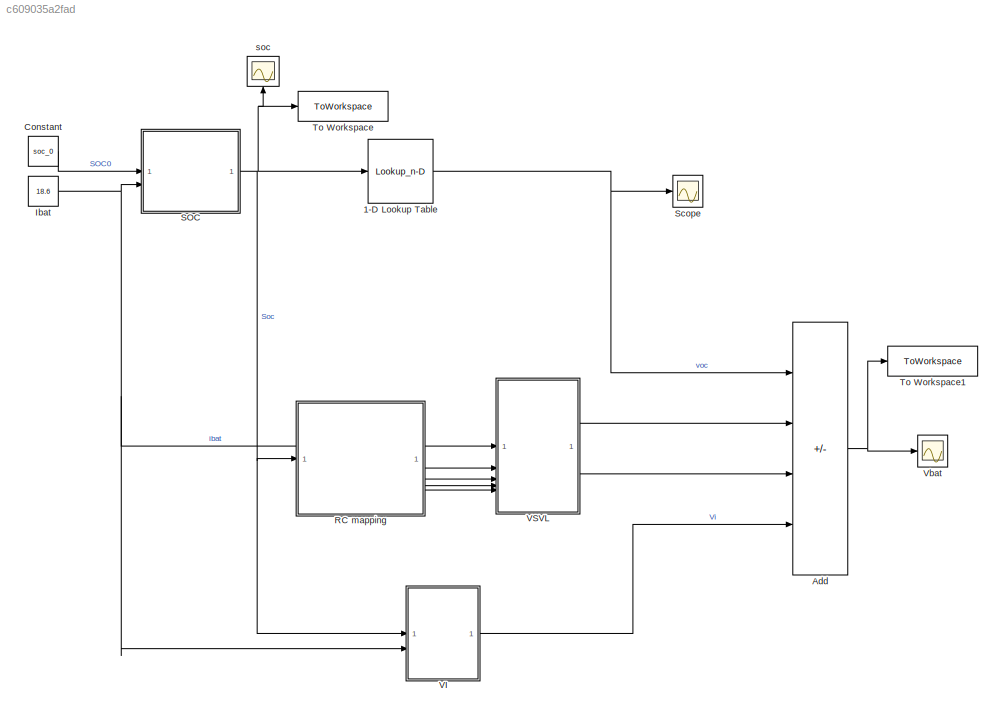
MODEL slx_c609035a2fad
KIND model
CONFIG AbsTol = auto
CONFIG EnableMultiTasking = off
CONFIG FixedStep = 1e-3
CONFIG MaxStep = auto
CONFIG MinStep = auto
CONFIG RelTol = 1e-3
CONFIG SampleTimeConstraint = Unconstrained
CONFIG SolverName = ode1
CONFIG StartTime = 0.0
CONFIG StopTime = 3000
BLOCK [Lookup_n-D] 1-D Lookup Table
  BreakpointsForDimension1 = soc_voc
  InputPortMap = u0
  InternalRulePriority = Speed
  NumberOfTableDimensions = 1
  RndMeth = Simplest
  Table = voc
BLOCK [Sum] Add
  IconShape = rectangular
  Inputs = +---
BLOCK [Constant] Constant
  Value = soc_0
BLOCK [Constant] Ibat
  Value = 18.6
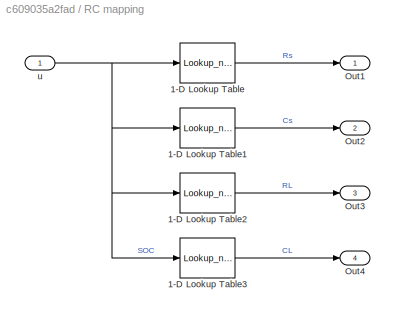
BLOCK [SubSystem] RC mapping
BLOCK [Lookup_n-D] RC mapping/1-D Lookup Table
  BreakpointsForDimension1 = soc_rs
  InputPortMap = u0
  InternalRulePriority = Speed
  NumberOfTableDimensions = 1
  RndMeth = Simplest
  Table = rs
BLOCK [Lookup_n-D] RC mapping/1-D Lookup Table1
  BreakpointsForDimension1 = soc_cs
  InputPortMap = u0
  InternalRulePriority = Speed
  NumberOfTableDimensions = 1
  RndMeth = Simplest
  Table = cs
BLOCK [Lookup_n-D] RC mapping/1-D Lookup Table2
  BreakpointsForDimension1 = soc_rl
  InputPortMap = u0
  InternalRulePriority = Speed
  NumberOfTableDimensions = 1
  RndMeth = Simplest
  Table = rl
BLOCK [Lookup_n-D] RC mapping/1-D Lookup Table3
  BreakpointsForDimension1 = soc_cl
  InputPortMap = u0
  InternalRulePriority = Speed
  NumberOfTableDimensions = 1
  RndMeth = Simplest
  Table = cl
BLOCK [Outport] RC mapping/Out1
  IconDisplay = Signal name
BLOCK [Outport] RC mapping/Out2
  IconDisplay = Signal name
  Port = 2
BLOCK [Outport] RC mapping/Out3
  IconDisplay = Signal name
  Port = 3
BLOCK [Outport] RC mapping/Out4
  IconDisplay = Signal name
  Port = 4
BLOCK [Inport] RC mapping/u
  IconDisplay = Signal name
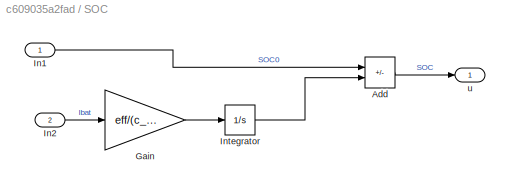
BLOCK [SubSystem] SOC
BLOCK [Sum] SOC/Add
  IconShape = rectangular
  Inputs = +-
BLOCK [Gain] SOC/Gain
  Gain = eff/(c_bat*36)
BLOCK [Inport] SOC/In1
  IconDisplay = Signal name
BLOCK [Inport] SOC/In2
  IconDisplay = Signal name
  Port = 2
BLOCK [Integrator] SOC/Integrator
BLOCK [Outport] SOC/u
  IconDisplay = Signal name
BLOCK [Scope] Scope
  Floating = off
  NumInputPorts = 1
  ScopeSpecificationString = Simulink.scopes.TimeScopeBlockCfg('CurrentConfiguration', extmgr.ConfigurationSet(extmgr.Configuration('Core','General UI',true),extmgr.Configuration('Core','Source UI',true),extmgr.Configuration('Sources','WiredSimulink',true,'DataLoggingVariableName','ScopeData2'),extmgr.Configuration('Visuals','Time Domain',true,'SerializedDisplays',{struct('MinYLimReal','3.28377','MaxYLimReal','3.46198','YLabe...<+1389ch>
BLOCK [ToWorkspace] To Workspace
  FixptAsFi = on
  MaxDataPoints = inf
  SampleTime = -1
  SaveFormat = Timeseries
  VariableName = socsim
BLOCK [ToWorkspace] To Workspace1
  FixptAsFi = on
  MaxDataPoints = inf
  SampleTime = -1
  SaveFormat = Timeseries
  VariableName = vbat
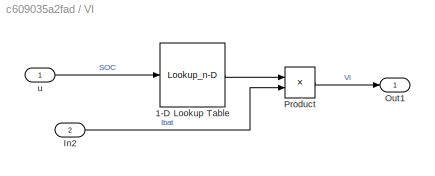
BLOCK [SubSystem] VI
BLOCK [Lookup_n-D] VI/1-D Lookup Table
  BreakpointsForDimension1 = soc_ri
  InputPortMap = u0
  InternalRulePriority = Speed
  NumberOfTableDimensions = 1
  RndMeth = Simplest
  Table = ri
BLOCK [Inport] VI/In2
  IconDisplay = Signal name
  Port = 2
BLOCK [Outport] VI/Out1
  IconDisplay = Signal name
BLOCK [Product] VI/Product
BLOCK [Inport] VI/u
  IconDisplay = Signal name
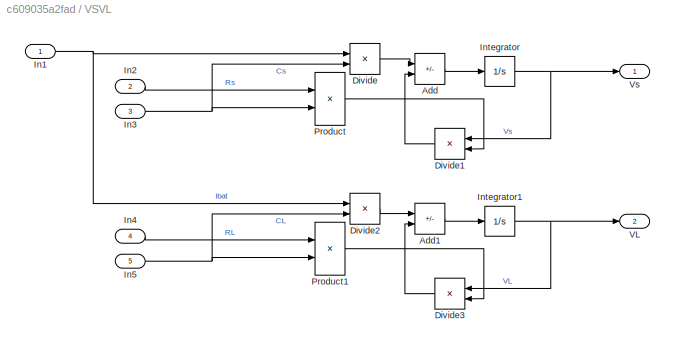
BLOCK [SubSystem] VSVL
BLOCK [Sum] VSVL/Add
  IconShape = rectangular
  Inputs = +-
BLOCK [Sum] VSVL/Add1
  IconShape = rectangular
  Inputs = +-
BLOCK [Product] VSVL/Divide
  Inputs = */
BLOCK [Product] VSVL/Divide1
  Inputs = */
  NameLocation = top
BLOCK [Product] VSVL/Divide2
  Inputs = */
BLOCK [Product] VSVL/Divide3
  Inputs = */
  NameLocation = top
BLOCK [Inport] VSVL/In1
  IconDisplay = Signal name
BLOCK [Inport] VSVL/In2
  IconDisplay = Signal name
  Port = 2
BLOCK [Inport] VSVL/In3
  IconDisplay = Signal name
  Port = 3
BLOCK [Inport] VSVL/In4
  IconDisplay = Signal name
  Port = 4
BLOCK [Inport] VSVL/In5
  IconDisplay = Signal name
  Port = 5
BLOCK [Integrator] VSVL/Integrator
BLOCK [Integrator] VSVL/Integrator1
BLOCK [Product] VSVL/Product
BLOCK [Product] VSVL/Product1
BLOCK [Outport] VSVL/VL
  Port = 2
BLOCK [Outport] VSVL/Vs
BLOCK [Scope] Vbat
  Floating = off
  NumInputPorts = 1
  ScopeSpecificationString = Simulink.scopes.TimeScopeBlockCfg('CurrentConfiguration', extmgr.ConfigurationSet(extmgr.Configuration('Core','General UI',true),extmgr.Configuration('Core','Source UI',true),extmgr.Configuration('Sources','WiredSimulink',true),extmgr.Configuration('Visuals','Time Domain',true,'SerializedDisplays',{struct('MinYLimReal','-162228091398117021595855900114944.00000','MaxYLimReal','180253434886796638120...<+1629ch>
BLOCK [Scope] soc
  Floating = off
  NameLocation = right
  NumInputPorts = 1
  ScopeSpecificationString = Simulink.scopes.TimeScopeBlockCfg('CurrentConfiguration', extmgr.ConfigurationSet(extmgr.Configuration('Core','General UI',true),extmgr.Configuration('Core','Source UI',true),extmgr.Configuration('Sources','WiredSimulink',true,'DataLoggingVariableName','ScopeData1'),extmgr.Configuration('Visuals','Time Domain',true,'SerializedDisplays',{struct('MinYLimReal','55.45','MaxYLimReal','104.95','YLabelRe...<+1729ch>
NET 1-D Lookup Table:1 -> Add:1, Scope:1
NET Add:1 -> To Workspace1:1, Vbat:1
LINE Constant:1 -> SOC:1
NET Ibat:1 -> SOC:2, VI:2, VSVL:1
LINE RC mapping/1-D Lookup Table1:1 -> RC mapping/Out2:1
LINE RC mapping/1-D Lookup Table2:1 -> RC mapping/Out3:1
LINE RC mapping/1-D Lookup Table3:1 -> RC mapping/Out4:1
LINE RC mapping/1-D Lookup Table:1 -> RC mapping/Out1:1
NET RC mapping/u:1 -> RC mapping/1-D Lookup Table1:1, RC mapping/1-D Lookup Table2:1, RC mapping/1-D Lookup Table3:1, RC mapping/1-D Lookup Table:1
LINE RC mapping:1 -> VSVL:2
LINE RC mapping:2 -> VSVL:3
LINE RC mapping:3 -> VSVL:4
LINE RC mapping:4 -> VSVL:5
LINE SOC/Add:1 -> SOC/u:1
LINE SOC/Gain:1 -> SOC/Integrator:1
LINE SOC/In1:1 -> SOC/Add:1
LINE SOC/In2:1 -> SOC/Gain:1
LINE SOC/Integrator:1 -> SOC/Add:2
NET SOC:1 -> 1-D Lookup Table:1, RC mapping:1, To Workspace:1, VI:1, soc:1
LINE VI/1-D Lookup Table:1 -> VI/Product:1
LINE VI/In2:1 -> VI/Product:2
LINE VI/Product:1 -> VI/Out1:1
LINE VI/u:1 -> VI/1-D Lookup Table:1
LINE VI:1 -> Add:4
LINE VSVL/Add1:1 -> VSVL/Integrator1:1
LINE VSVL/Add:1 -> VSVL/Integrator:1
LINE VSVL/Divide1:1 -> VSVL/Add:2
LINE VSVL/Divide2:1 -> VSVL/Add1:1
LINE VSVL/Divide3:1 -> VSVL/Add1:2
LINE VSVL/Divide:1 -> VSVL/Add:1
NET VSVL/In1:1 -> VSVL/Divide2:1, VSVL/Divide:1
LINE VSVL/In2:1 -> VSVL/Product:1
NET VSVL/In3:1 -> VSVL/Divide:2, VSVL/Product:2
LINE VSVL/In4:1 -> VSVL/Product1:1
NET VSVL/In5:1 -> VSVL/Divide2:2, VSVL/Product1:2
NET VSVL/Integrator1:1 -> VSVL/Divide3:1, VSVL/VL:1
NET VSVL/Integrator:1 -> VSVL/Divide1:1, VSVL/Vs:1
LINE VSVL/Product1:1 -> VSVL/Divide3:2
LINE VSVL/Product:1 -> VSVL/Divide1:2
LINE VSVL:1 -> Add:2
LINE VSVL:2 -> Add:3
note: NET lines group one-source signal fan-out (src -> all destinations, sorted); 1:1 wires keep LINE
